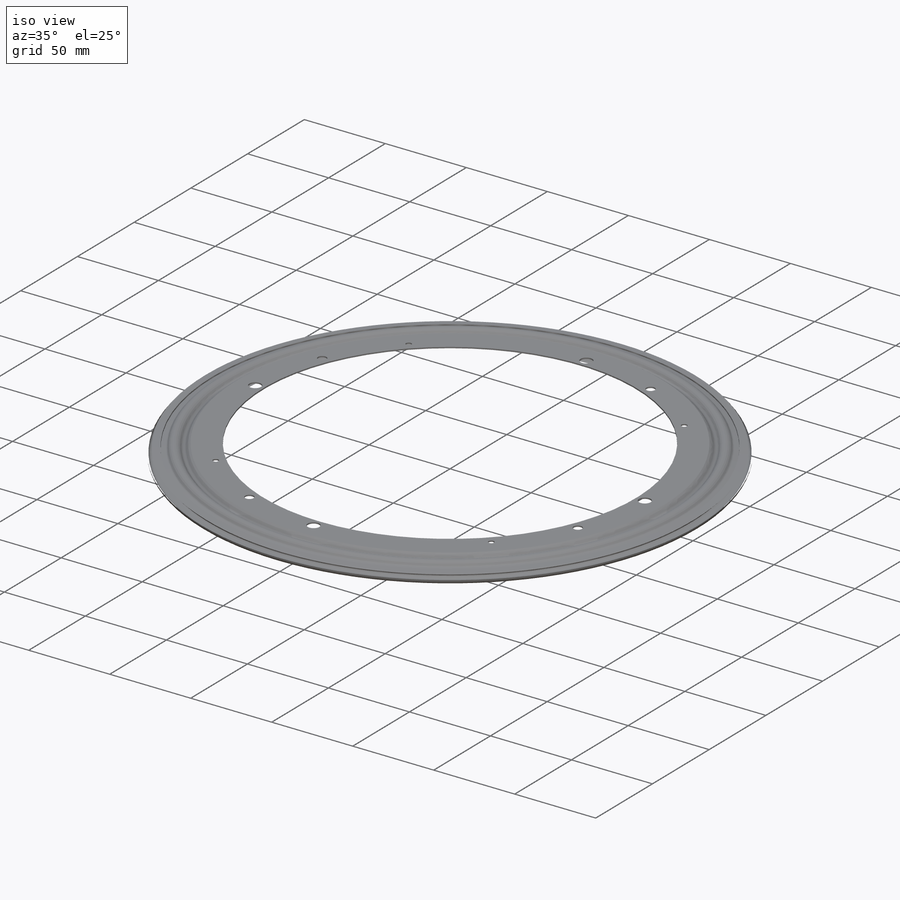
[diagram: iso view]
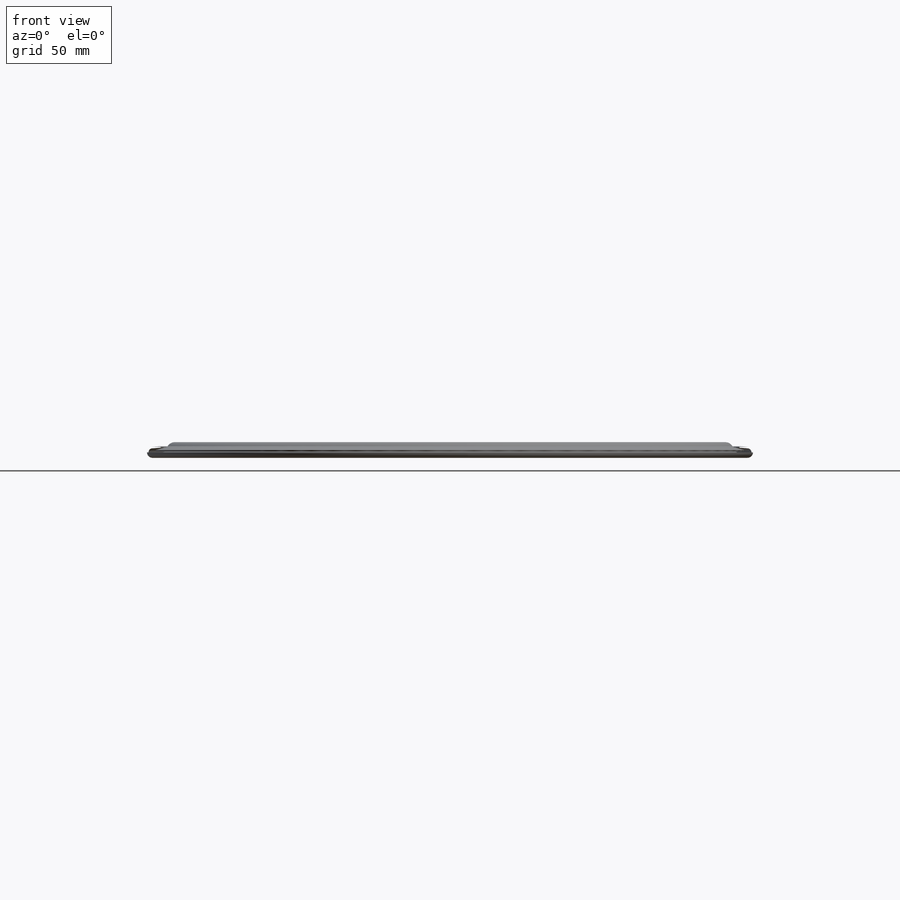
[diagram: front view]
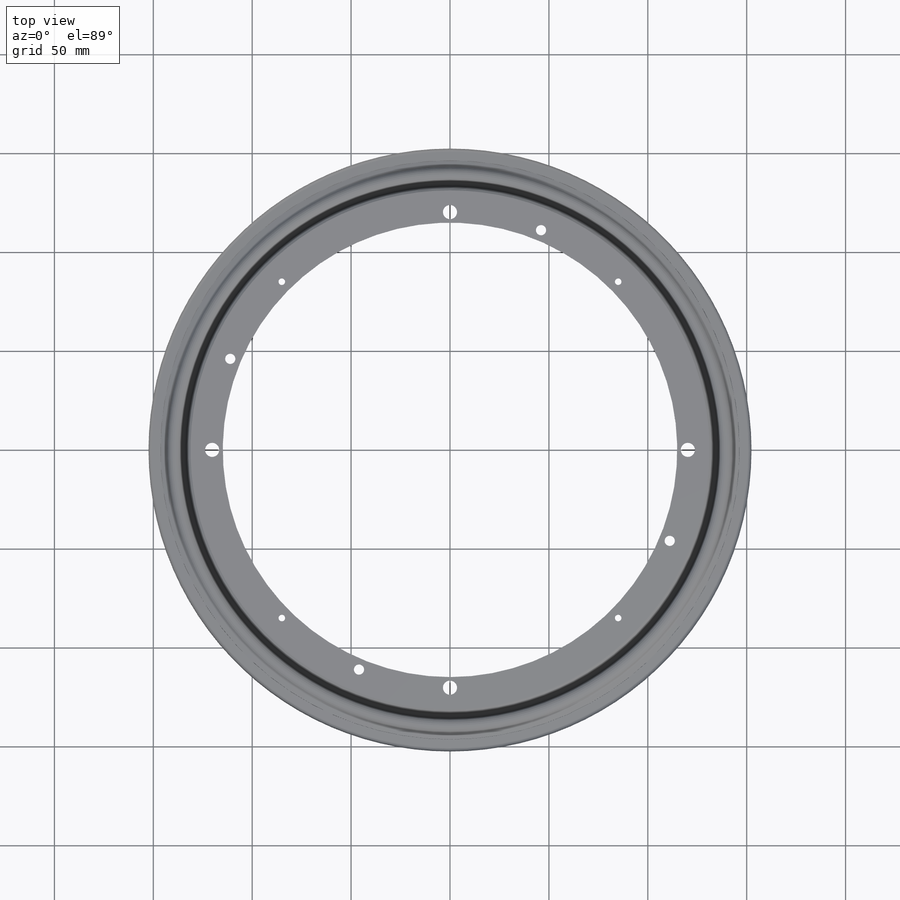
[diagram: top view]
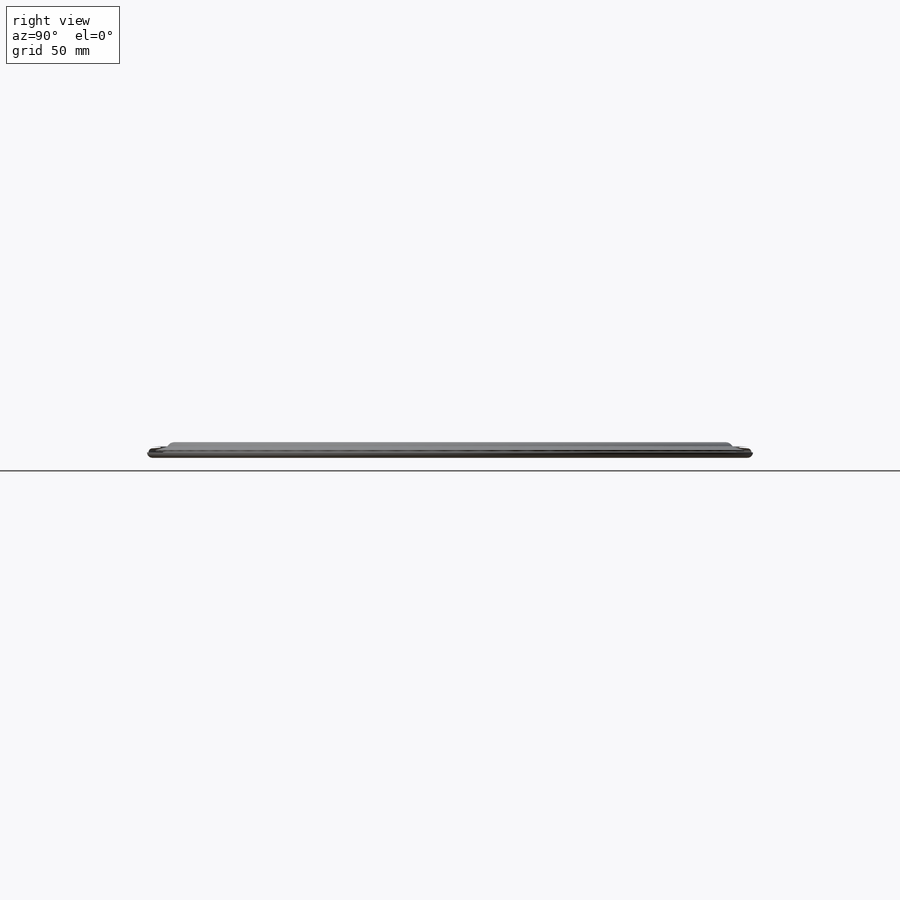
[diagram: right view]
SOLIDWORKS PART (.sldprt)
format: sldprt  version: not decoded by parser v0  size: 771,584 bytes
history: native  units: mm
features: sketch x7, cut_extrude x4, pattern_circular x2, plane x2, material x1 (+13 scaffold rows collapsed)
feature tree (29):
  scaffold x13  (default folders/planes/origin — collapsed)
  material  "Material <not specified>"
  sketch  "Sketch1"  dims[c1.D4=2.794mm c1.D1=7.9502mm c1.D2=229.7938mm c1.D3=160.782mm c2.D4=153.2001mm c2.D1=360.0deg c2.D3=0.762mm c3.D4=1.0mm c3.D7=0.0mm]
  sketch  "Revolve-Thin2"
  sketch  "Sketch1<3>"  dims[D1=360.0deg D3=0.762mm D4=1.0mm D7=0.0mm]
  sketch  "Sketch2"  dims[c1.D1=5.1562mm c1.D2=215.9mm c1.D3=107.95mm c2.D3=45.0deg]
  cut_extrude  "Cut-Extrude1"  [1 undecoded]
  pattern_circular  "CirPattern1"  Count=4 Angle=360deg
  sketch  "Sketch3"  dims[c1.D1=~10.323385mm c1.D2=7.1374mm c1.D5=5.1562mm c1.D6=3.302mm c2.D1=240.5126mm c2.D3=~97.39323mm c3.D3=22.5deg c3.D4=~91.366161mm c4.D4=45.0deg c4.D5=~92.040187mm]
  cut_extrude  "Cut-Extrude2"  [1 undecoded]
  pattern_circular  "CirPattern2"  Count=4 Angle=360deg
  sketch  "Sketch4"  dims[c1.D2=19.05mm c1.D3=240.5126mm c1.D1=~34.133775mm c2.D1=22.5deg]
  cut_extrude  "Cut-Extrude3"  [1 undecoded]
  plane  "Plane1"
  plane  "Plane2"  Offset=127mm
  sketch  "Sketch5"
  cut_extrude  "Cut-Extrude4"  [1 undecoded]
decode coverage: 7 of 13 modeling features carry decoded parameters
note: ~ marks probable driven/reference dimensions
note: 4 parameter values undecoded
summary: no parameter record found for 4 features
note: suppression state not decoded; provenance and decode notes live in map.json
